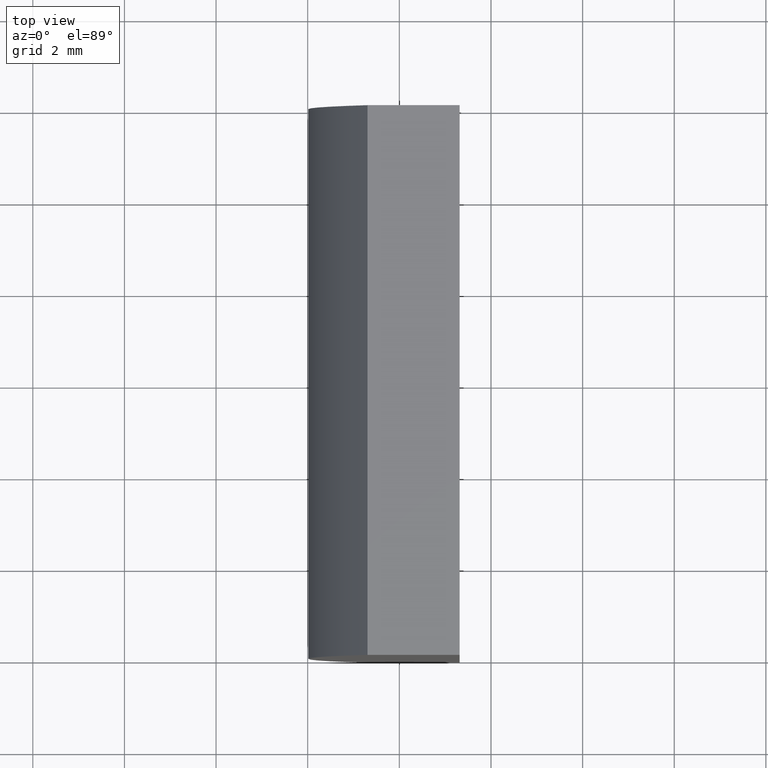
[diagram: clean part render]
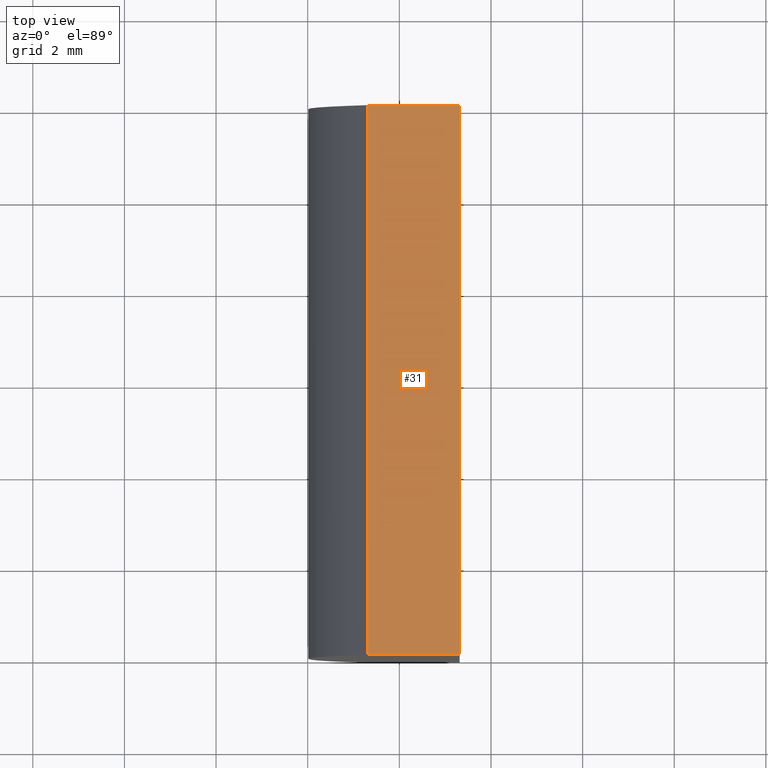
[diagram: same view with one face highlighted and labeled with its STEP entity id]
A machine part, top view. The second image highlights one B-rep face of the part: STEP entity #31.
In plain terms, the highlighted planar face has unit normal (0, 0, -1).
Its self-contained STEP definition (entity closure, byte-faithful):
#1 = ORIENTED_EDGE ( 'NONE', *, *, #59, .T. ) ;
#3 = VERTEX_POINT ( 'NONE', #68 ) ;
#4 = ORIENTED_EDGE ( 'NONE', *, *, #42, .F. ) ;
#8 = VERTEX_POINT ( 'NONE', #175 ) ;
#11 = CARTESIAN_POINT ( 'NONE',  ( -4.695519393116569500, 12.00000000000000000, 5.000000000000000000 ) ) ;
#13 = DIRECTION ( 'NONE',  ( 1.000000000000000000, 0.0000000000000000000, 0.0000000000000000000 ) ) ;
#20 = DIRECTION ( 'NONE',  ( -0.0000000000000000000, -1.000000000000000000, -0.0000000000000000000 ) ) ;
#23 = ORIENTED_EDGE ( 'NONE', *, *, #172, .T. ) ;
#27 = FACE_OUTER_BOUND ( 'NONE', #108, .T. ) ;
#31 = ADVANCED_FACE ( 'NONE', ( #27 ), #76, .F. ) ;
#41 = LINE ( 'NONE', #93, #100 ) ;
#42 = EDGE_CURVE ( 'NONE', #8, #111, #183, .T. ) ;
#54 = DIRECTION ( 'NONE',  ( -0.0000000000000000000, -1.000000000000000000, -0.0000000000000000000 ) ) ;
#55 = AXIS2_PLACEMENT_3D ( 'NONE', #11, #180, #181 ) ;
#56 = DIRECTION ( 'NONE',  ( 1.000000000000000000, 0.0000000000000000000, 0.0000000000000000000 ) ) ;
#59 = EDGE_CURVE ( 'NONE', #99, #111, #41, .T. ) ;
#64 = CARTESIAN_POINT ( 'NONE',  ( -2.684795665148733700, 12.00000000000000000, 5.000000000000000000 ) ) ;
#68 = CARTESIAN_POINT ( 'NONE',  ( -4.695519393116569500, 12.00000000000000000, 5.000000000000000000 ) ) ;
#74 = CARTESIAN_POINT ( 'NONE',  ( -4.695519393116569500, 0.0000000000000000000, 5.000000000000000000 ) ) ;
#75 = EDGE_CURVE ( 'NONE', #3, #8, #136, .T. ) ;
#76 = PLANE ( 'NONE',  #55 ) ;
#81 = ORIENTED_EDGE ( 'NONE', *, *, #75, .F. ) ;
#93 = CARTESIAN_POINT ( 'NONE',  ( -4.695519393116569500, 0.0000000000000000000, 5.000000000000000000 ) ) ;
#99 = VERTEX_POINT ( 'NONE', #74 ) ;
#100 = VECTOR ( 'NONE', #13, 1000.000000000000000 ) ;
#105 = CARTESIAN_POINT ( 'NONE',  ( -2.684795665148733700, 0.0000000000000000000, 5.000000000000000000 ) ) ;
#108 = EDGE_LOOP ( 'NONE', ( #1, #4, #81, #23 ) ) ;
#111 = VERTEX_POINT ( 'NONE', #105 ) ;
#122 = VECTOR ( 'NONE', #20, 1000.000000000000000 ) ;
#133 = CARTESIAN_POINT ( 'NONE',  ( -4.695519393116569500, 12.00000000000000000, 5.000000000000000000 ) ) ;
#136 = LINE ( 'NONE', #143, #145 ) ;
#143 = CARTESIAN_POINT ( 'NONE',  ( -4.695519393116569500, 12.00000000000000000, 5.000000000000000000 ) ) ;
#145 = VECTOR ( 'NONE', #56, 1000.000000000000000 ) ;
#172 = EDGE_CURVE ( 'NONE', #3, #99, #177, .T. ) ;
#175 = CARTESIAN_POINT ( 'NONE',  ( -2.684795665148733700, 12.00000000000000000, 5.000000000000000000 ) ) ;
#177 = LINE ( 'NONE', #133, #185 ) ;
#180 = DIRECTION ( 'NONE',  ( 0.0000000000000000000, 0.0000000000000000000, -1.000000000000000000 ) ) ;
#181 = DIRECTION ( 'NONE',  ( -1.000000000000000000, 0.0000000000000000000, -0.0000000000000000000 ) ) ;
#183 = LINE ( 'NONE', #64, #122 ) ;
#185 = VECTOR ( 'NONE', #54, 1000.000000000000000 ) ;